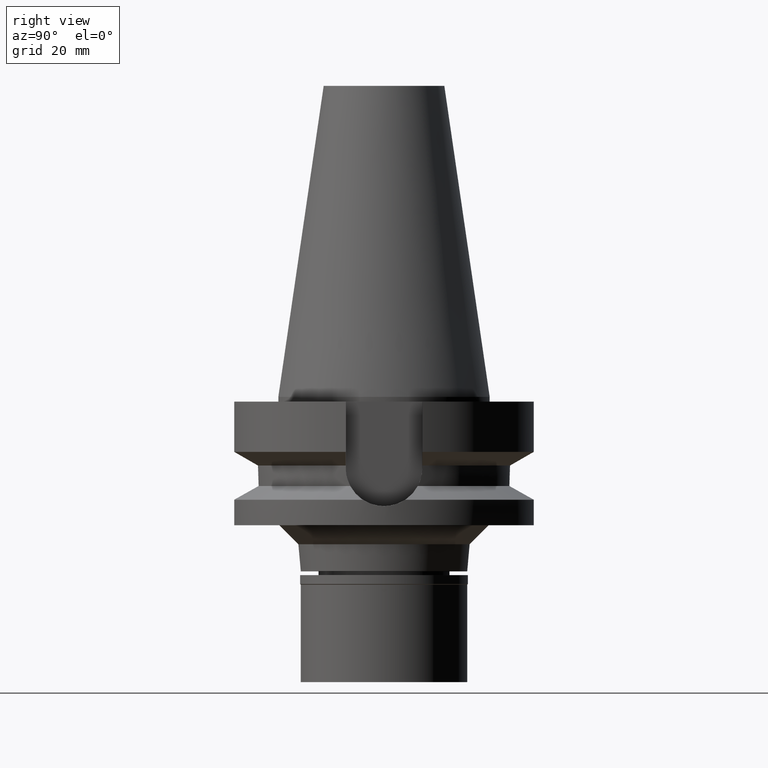
[diagram: clean part render]
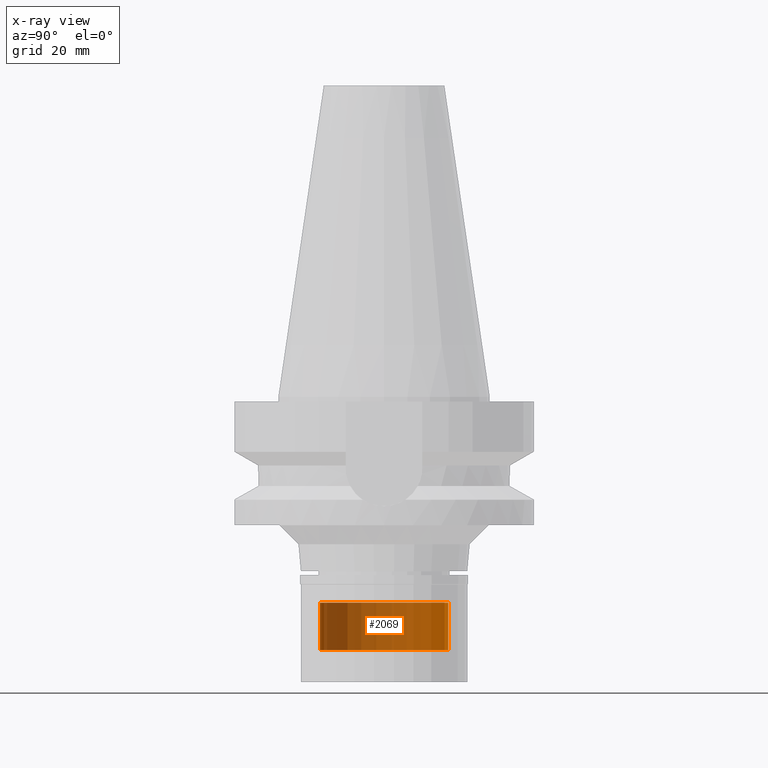
[diagram: x-ray — body ghosted, one internal face saturated and labeled with its STEP entity id]
A machine part, right view, then the same camera in x-ray: the body is ghosted and one INTERNAL B-rep face — a face not visible from any outside direction — is saturated and labeled: STEP entity #2069.
In plain terms, the highlighted cylindrical surface (partial cylindrical patch) has radius 13.5 mm, axis along (0, 0, -1).
Its self-contained STEP definition (entity closure, byte-faithful):
#85 = VERTEX_POINT ( 'NONE', #1670 ) ;
#111 = EDGE_CURVE ( 'NONE', #352, #1219, #421, .T. ) ;
#190 = CARTESIAN_POINT ( 'NONE',  ( 0.0000000000000000000, 13.50000000000000000, -53.29999999999999716 ) ) ;
#278 = DIRECTION ( 'NONE',  ( 0.0000000000000000000, 1.000000000000000000, 0.0000000000000000000 ) ) ;
#327 = DIRECTION ( 'NONE',  ( 0.0000000000000000000, 0.0000000000000000000, -1.000000000000000000 ) ) ;
#352 = VERTEX_POINT ( 'NONE', #2470 ) ;
#372 = ORIENTED_EDGE ( 'NONE', *, *, #111, .T. ) ;
#391 = EDGE_CURVE ( 'NONE', #85, #950, #1809, .T. ) ;
#421 = LINE ( 'NONE', #911, #1260 ) ;
#521 = DIRECTION ( 'NONE',  ( 0.0000000000000000000, 0.0000000000000000000, 1.000000000000000000 ) ) ;
#576 = CARTESIAN_POINT ( 'NONE',  ( 0.0000000000000000000, 2.098248593318999714E-14, -43.29999999999999716 ) ) ;
#628 = EDGE_CURVE ( 'NONE', #1219, #950, #1701, .T. ) ;
#676 = DIRECTION ( 'NONE',  ( 0.0000000000000000000, 0.0000000000000000000, -1.000000000000000000 ) ) ;
#712 = AXIS2_PLACEMENT_3D ( 'NONE', #2181, #1907, #1223 ) ;
#757 = AXIS2_PLACEMENT_3D ( 'NONE', #576, #327, #1529 ) ;
#811 = VECTOR ( 'NONE', #2685, 1000.000000000000000 ) ;
#901 = ORIENTED_EDGE ( 'NONE', *, *, #1468, .T. ) ;
#911 = CARTESIAN_POINT ( 'NONE',  ( 0.0000000000000000000, 13.50000000000000000, -43.29999999999999716 ) ) ;
#950 = VERTEX_POINT ( 'NONE', #1304 ) ;
#984 = ORIENTED_EDGE ( 'NONE', *, *, #391, .F. ) ;
#1213 = AXIS2_PLACEMENT_3D ( 'NONE', #1493, #521, #278 ) ;
#1219 = VERTEX_POINT ( 'NONE', #190 ) ;
#1223 = DIRECTION ( 'NONE',  ( 0.0000000000000000000, -1.000000000000000000, 0.0000000000000000000 ) ) ;
#1260 = VECTOR ( 'NONE', #676, 1000.000000000000000 ) ;
#1304 = CARTESIAN_POINT ( 'NONE',  ( 0.0000000000000000000, -13.50000000000000000, -53.29999999999999716 ) ) ;
#1450 = FACE_OUTER_BOUND ( 'NONE', #2780, .T. ) ;
#1468 = EDGE_CURVE ( 'NONE', #85, #352, #2390, .T. ) ;
#1493 = CARTESIAN_POINT ( 'NONE',  ( 0.0000000000000000000, 2.098248593318999714E-14, -53.29999999999999716 ) ) ;
#1529 = DIRECTION ( 'NONE',  ( 0.0000000000000000000, -1.000000000000000000, 0.0000000000000000000 ) ) ;
#1670 = CARTESIAN_POINT ( 'NONE',  ( 0.0000000000000000000, -13.50000000000000000, -43.29999999999999716 ) ) ;
#1701 = CIRCLE ( 'NONE', #1213, 13.50000000000000000 ) ;
#1809 = LINE ( 'NONE', #2997, #811 ) ;
#1907 = DIRECTION ( 'NONE',  ( 0.0000000000000000000, 0.0000000000000000000, -1.000000000000000000 ) ) ;
#2069 = ADVANCED_FACE ( 'NONE', ( #1450 ), #2395, .T. ) ;
#2181 = CARTESIAN_POINT ( 'NONE',  ( 0.0000000000000000000, 2.098248593318999714E-14, 71.33499999999999375 ) ) ;
#2390 = CIRCLE ( 'NONE', #757, 13.50000000000000000 ) ;
#2395 = CYLINDRICAL_SURFACE ( 'NONE', #712, 13.50000000000000000 ) ;
#2470 = CARTESIAN_POINT ( 'NONE',  ( 0.0000000000000000000, 13.50000000000000000, -43.29999999999999716 ) ) ;
#2685 = DIRECTION ( 'NONE',  ( 0.0000000000000000000, 0.0000000000000000000, -1.000000000000000000 ) ) ;
#2780 = EDGE_LOOP ( 'NONE', ( #2899, #984, #901, #372 ) ) ;
#2899 = ORIENTED_EDGE ( 'NONE', *, *, #628, .T. ) ;
#2997 = CARTESIAN_POINT ( 'NONE',  ( 0.0000000000000000000, -13.50000000000000000, -43.29999999999999716 ) ) ;